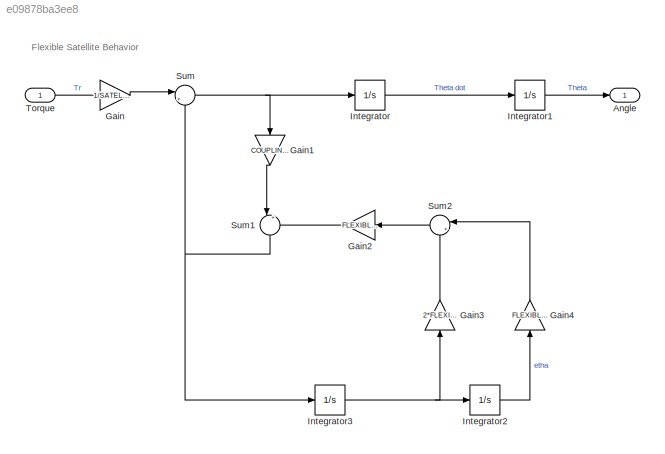
MODEL slx_e09878ba3ee8
KIND model
CONFIG AbsTol = auto
CONFIG EnableMultiTasking = on
CONFIG FixedStep = auto
CONFIG MaxStep = auto
CONFIG MinStep = auto
CONFIG RelTol = 1e-3
CONFIG SampleTimeConstraint = Unconstrained
CONFIG SolverName = VariableStepAuto
CONFIG StartTime = 0.0
CONFIG StopTime = 10.0
BLOCK [Outport] Angle
BLOCK [Gain] Gain
  Gain = 1/SATELLITE_INERTIA
BLOCK [Gain] Gain1
  Gain = COUPLING_COEFFICIENT
  NameLocation = left
BLOCK [Gain] Gain2
  Gain = FLEXIBLE_MODE_FREQUENCY
  NameLocation = top
BLOCK [Gain] Gain3
  Gain = 2*FLEXIBLE_MODE_DAMPING_RATIO
  NameLocation = right
BLOCK [Gain] Gain4
  Gain = FLEXIBLE_MODE_FREQUENCY
  NameLocation = right
BLOCK [Integrator] Integrator
  Ports = [1, 1]
BLOCK [Integrator] Integrator1
  Ports = [1, 1]
BLOCK [Integrator] Integrator2
  InitialCondition = INITIAL_CONDITION_ON_STATE
  Ports = [1, 1]
BLOCK [Integrator] Integrator3
  Ports = [1, 1]
BLOCK [Sum] Sum
  Inputs = |++
  Ports = [2, 1]
BLOCK [Sum] Sum1
  Inputs = |+-
  NameLocation = left
  Ports = [2, 1]
BLOCK [Sum] Sum2
  Inputs = |++
  NameLocation = top
  Ports = [2, 1]
BLOCK [Inport] Torque
ANNOTATION (root): Flexible Satellite Behavior
LINE Gain1:1 -> Sum1:1
LINE Gain2:1 -> Sum1:2
LINE Gain3:1 -> Sum2:2
LINE Gain4:1 -> Sum2:1
LINE Gain:1 -> Sum:1
LINE Integrator1:1 -> Angle:1
LINE Integrator2:1 -> Gain4:1
NET Integrator3:1 -> Gain3:1, Integrator2:1
LINE Integrator:1 -> Integrator1:1
NET Sum1:1 -> Integrator3:1, Sum:2
LINE Sum2:1 -> Gain2:1
NET Sum:1 -> Gain1:1, Integrator:1
LINE Torque:1 -> Gain:1
note: NET lines group one-source signal fan-out (src -> all destinations, sorted); 1:1 wires keep LINE
